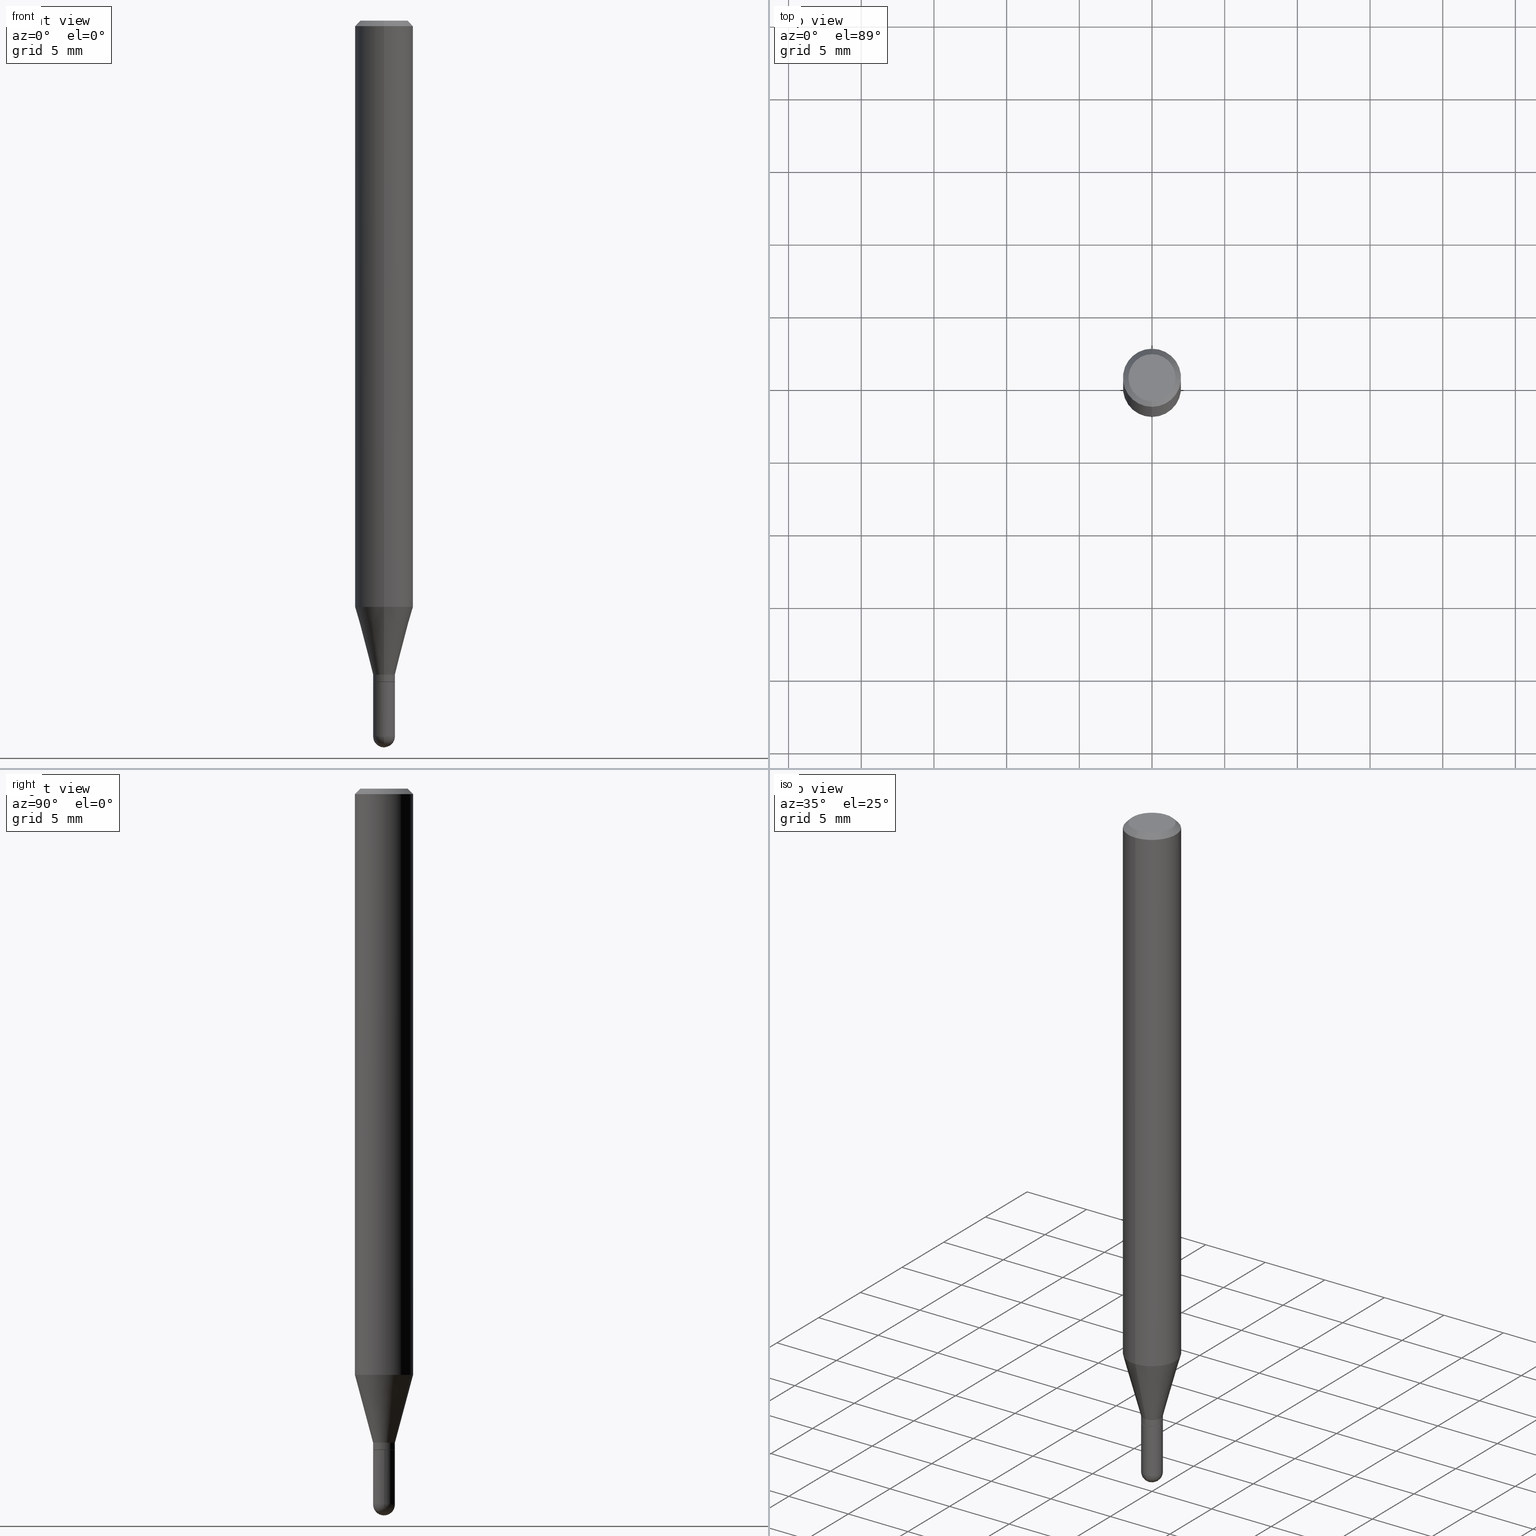
[diagram: canonical four-view strip — front | top / right | iso, engineering-drawing reading convention]
A machine part, canonical four-view strip (front | top / right | iso — engineering-drawing reading convention). The complete STEP part file that produces these views, byte-faithful:
ISO-10303-21;
HEADER;
FILE_DESCRIPTION (( 'STEP AP203' ),
    '1' );
FILE_NAME ('02080.STEP',
    '2024-03-07T20:06:09',
    ( '' ),
    ( '' ),
    'SwSTEP 2.0',
    'SolidWorks 2023',
    '' );
FILE_SCHEMA (( 'CONFIG_CONTROL_DESIGN' ));
ENDSEC;

DATA;
#1 = CARTESIAN_POINT ( 'NONE',  ( -2.099653784170616315E-16, -0.02955000000000669938, -1.938949999999999729 ) ) ;
#2 = EDGE_LOOP ( 'NONE', ( #120, #334, #389, #105 ) ) ;
#3 = FACE_OUTER_BOUND ( 'NONE', #511, .T. ) ;
#4 = ORIENTED_EDGE ( 'NONE', *, *, #478, .F. ) ;
#5 = DIMENSIONAL_EXPONENTS ( 1.000000000000000000, 0.000000000000000000, 0.000000000000000000, 0.000000000000000000, 0.000000000000000000, 0.000000000000000000, 0.000000000000000000 ) ;
#6 = DIRECTION ( 'NONE',  ( -6.982962677686265922E-15, -1.000000000000000000, 3.491489046793725372E-15 ) ) ;
#7 = VERTEX_POINT ( 'NONE', #298 ) ;
#8 = VECTOR ( 'NONE', #45, 39.37007874015748143 ) ;
#9 = CARTESIAN_POINT ( 'NONE',  ( 4.812641836783178866E-29, -6.874790431158471975E-15, -1.968500000000000139 ) ) ;
#10 = EDGE_LOOP ( 'NONE', ( #497, #225, #432, #278, #217 ) ) ;
#11 = AXIS2_PLACEMENT_3D ( 'NONE', #97, #333, #405 ) ;
#12 = AXIS2_PLACEMENT_3D ( 'NONE', #294, #78, #414 ) ;
#13 = DIRECTION ( 'NONE',  ( -2.445468806185136597E-29, 3.491481338843145583E-15, 1.000000000000000000 ) ) ;
#14 = EDGE_LOOP ( 'NONE', ( #84, #310, #416, #46 ) ) ;
#15 = LINE ( 'NONE', #183, #130 ) ;
#16 = ORIENTED_EDGE ( 'NONE', *, *, #451, .F. ) ;
#17 = FACE_OUTER_BOUND ( 'NONE', #79, .T. ) ;
#18 = SPHERICAL_SURFACE ( 'NONE', #321, 0.02954999999999984722 ) ;
#19 = CARTESIAN_POINT ( 'NONE',  ( 0.000000000000000000, 0.000000000000000000, 0.000000000000000000 ) ) ;
#20 = PRODUCT_DEFINITION_SHAPE ( 'NONE', 'NONE',  #65 ) ;
#21 = AXIS2_PLACEMENT_3D ( 'NONE', #306, #192, #351 ) ;
#22 = ORGANIZATION ( 'UNSPECIFIED', 'UNSPECIFIED', '' ) ;
#23 = CARTESIAN_POINT ( 'NONE',  ( 4.380558630966984636E-29, -6.254304329521600720E-15, -1.791300000000000336 ) ) ;
#24 = DIRECTION ( 'NONE',  ( -2.445463423752014680E-29, 3.491489046793725372E-15, 1.000000000000000000 ) ) ;
#25 = DATE_AND_TIME ( #67, #60 ) ;
#26 = ADVANCED_FACE ( 'NONE', ( #421 ), #18, .T. ) ;
#27 = APPROVAL_PERSON_ORGANIZATION ( #138, #143, #373 ) ;
#28 = EDGE_CURVE ( 'NONE', #460, #313, #506, .T. ) ;
#29 = DATE_AND_TIME ( #375, #308 ) ;
#30 = LINE ( 'NONE', #33, #398 ) ;
#31 = EDGE_CURVE ( 'NONE', #156, #304, #227, .T. ) ;
#32 = CIRCLE ( 'NONE', #426, 0.07875000000000000056 ) ;
#33 = CARTESIAN_POINT ( 'NONE',  ( 5.595524044110787031E-16, 0.07875000000000000056, -2.749547624350058893E-16 ) ) ;
#34 = DIRECTION ( 'NONE',  ( -6.982962677686265133E-15, -1.000000000000000000, 0.000000000000000000 ) ) ;
#35 = DIRECTION ( 'NONE',  ( -2.445463423752014680E-29, 3.491489046793725372E-15, 1.000000000000000000 ) ) ;
#36 = CARTESIAN_POINT ( 'NONE',  ( 4.380558630966984636E-29, -6.254304329521600720E-15, -1.791300000000000336 ) ) ;
#37 = APPLICATION_CONTEXT ( 'configuration controlled 3d designs of mechanical parts and assemblies' ) ;
#38 = VERTEX_POINT ( 'NONE', #270 ) ;
#39 = CARTESIAN_POINT ( 'NONE',  ( -5.749254559523100679E-45, 8.208447988563890447E-31, 2.350987752947930189E-16 ) ) ;
#40 = EDGE_CURVE ( 'NONE', #430, #453, #152, .T. ) ;
#41 = VECTOR ( 'NONE', #117, 39.37007874015748143 ) ;
#42 = AXIS2_PLACEMENT_3D ( 'NONE', #85, #52, #302 ) ;
#43 = APPROVAL ( #450, 'UNSPECIFIED' ) ;
#44 = ORIENTED_EDGE ( 'NONE', *, *, #307, .T. ) ;
#45 = DIRECTION ( 'NONE',  ( -4.937700262161976356E-15, -0.7071067811861768693, 0.7071067811869181652 ) ) ;
#46 = ORIENTED_EDGE ( 'NONE', *, *, #216, .F. ) ;
#47 = LINE ( 'NONE', #444, #41 ) ;
#48 = ORIENTED_EDGE ( 'NONE', *, *, #113, .T. ) ;
#49 = EDGE_CURVE ( 'NONE', #161, #395, #254, .T. ) ;
#50 = PLANE ( 'NONE',  #106 ) ;
#51 = ORIENTED_EDGE ( 'NONE', *, *, #442, .T. ) ;
#52 = DIRECTION ( 'NONE',  ( -2.445463423752014680E-29, 3.491489046793725372E-15, 1.000000000000000000 ) ) ;
#53 = VERTEX_POINT ( 'NONE', #194 ) ;
#54 = AXIS2_PLACEMENT_3D ( 'NONE', #195, #474, #126 ) ;
#55 = DIRECTION ( 'NONE',  ( -2.445468806185136597E-29, 3.491481338843145583E-15, 1.000000000000000000 ) ) ;
#56 = CARTESIAN_POINT ( 'NONE',  ( 0.000000000000000000, 0.000000000000000000, 0.000000000000000000 ) ) ;
#57 = CYLINDRICAL_SURFACE ( 'NONE', #486, 0.02954999999999992008 ) ;
#58 = VECTOR ( 'NONE', #489, 39.37007874015748143 ) ;
#59 = CC_DESIGN_DATE_AND_TIME_ASSIGNMENT ( #170, #175, ( #65 ) ) ;
#60 = LOCAL_TIME ( 15, 6, 9.000000000000000000, #410 ) ;
#61 = LINE ( 'NONE', #327, #271 ) ;
#62 = ADVANCED_BREP_SHAPE_REPRESENTATION ( '02080', ( #134, #287, #77 ), #250 ) ;
#63 = EDGE_CURVE ( 'NONE', #391, #507, #15, .T. ) ;
#64 = PERSON_AND_ORGANIZATION_ROLE ( 'creator' ) ;
#65 = PRODUCT_DEFINITION ( 'UNKNOWN', '', #289, #448 ) ;
#66 = CARTESIAN_POINT ( 'NONE',  ( 2.099653784171501564E-16, 0.02954999999999330038, -1.790800000000000169 ) ) ;
#67 = CALENDAR_DATE ( 2024, 7, 3 ) ;
#68 = VECTOR ( 'NONE', #231, 39.37007874015748143 ) ;
#69 = DIRECTION ( 'NONE',  ( 1.000000000000000000, 0.000000000000000000, 0.000000000000000000 ) ) ;
#70 = PERSON_AND_ORGANIZATION ( #185, #22 ) ;
#71 = ORIENTED_EDGE ( 'NONE', *, *, #343, .F. ) ;
#72 = DIRECTION ( 'NONE',  ( -6.982962677686266711E-15, -1.000000000000000000, 0.000000000000000000 ) ) ;
#73 = MECHANICAL_CONTEXT ( 'NONE', #213, 'mechanical' ) ;
#74 = AXIS2_PLACEMENT_3D ( 'NONE', #383, #386, #425 ) ;
#75 = DIRECTION ( 'NONE',  ( -2.445463423752014680E-29, 3.491489046793725372E-15, 1.000000000000000000 ) ) ;
#76 = AXIS2_PLACEMENT_3D ( 'NONE', #457, #379, #257 ) ;
#77 = AXIS2_PLACEMENT_3D ( 'NONE', #102, #212, #69 ) ;
#78 = DIRECTION ( 'NONE',  ( -2.445468806185136597E-29, 3.491481338843145583E-15, 1.000000000000000000 ) ) ;
#79 = EDGE_LOOP ( 'NONE', ( #318, #413 ) ) ;
#80 = DIRECTION ( 'NONE',  ( -2.445468806185136597E-29, 3.491481338843145583E-15, 1.000000000000000000 ) ) ;
#81 = CARTESIAN_POINT ( 'NONE',  ( 4.741641741752670047E-29, -6.769807741949916508E-15, -1.938949999999999729 ) ) ;
#82 = ADVANCED_FACE ( 'NONE', ( #239 ), #190, .F. ) ;
#83 = DIRECTION ( 'NONE',  ( 1.000000000000000000, -6.982962677686261977E-15, 0.000000000000000000 ) ) ;
#84 = ORIENTED_EDGE ( 'NONE', *, *, #422, .T. ) ;
#85 = CARTESIAN_POINT ( 'NONE',  ( 4.380558630966984636E-29, -6.254304329521600720E-15, -1.791300000000000336 ) ) ;
#86 = DIRECTION ( 'NONE',  ( -2.445468806185136597E-29, 3.491481338843145583E-15, 1.000000000000000000 ) ) ;
#87 = EDGE_LOOP ( 'NONE', ( #147, #276, #268, #244 ) ) ;
#88 = DIRECTION ( 'NONE',  ( 2.445463423752014680E-29, -3.491489046793725372E-15, -1.000000000000000000 ) ) ;
#89 = ORIENTED_EDGE ( 'NONE', *, *, #451, .T. ) ;
#90 = CARTESIAN_POINT ( 'NONE',  ( 4.380558630966984075E-29, -6.254304329521599931E-15, -1.791300000000000114 ) ) ;
#91 = ORIENTED_EDGE ( 'NONE', *, *, #248, .T. ) ;
#92 = AXIS2_PLACEMENT_3D ( 'NONE', #368, #246, #164 ) ;
#93 = CARTESIAN_POINT ( 'NONE',  ( -2.063465471255836346E-16, -0.02955000000000600202, -1.790800000000000169 ) ) ;
#94 = EDGE_CURVE ( 'NONE', #38, #53, #262, .T. ) ;
#95 = CONICAL_SURFACE ( 'NONE', #224, 0.07875000000000000056, 0.7853981633974483900 ) ;
#96 = CIRCLE ( 'NONE', #12, 0.02954999999999999988 ) ;
#97 = CARTESIAN_POINT ( 'NONE',  ( 4.451638707024993845E-16, 0.06375000000000000111, -1.050330390857034540E-16 ) ) ;
#98 = APPROVAL_DATE_TIME ( #369, #143 ) ;
#99 = COORDINATED_UNIVERSAL_TIME_OFFSET ( 5, 0, .BEHIND. ) ;
#100 = AXIS2_PLACEMENT_3D ( 'NONE', #347, #199, #509 ) ;
#101 = FACE_OUTER_BOUND ( 'NONE', #2, .T. ) ;
#102 = CARTESIAN_POINT ( 'NONE',  ( 0.000000000000000000, 0.000000000000000000, 0.000000000000000000 ) ) ;
#103 = ORIENTED_EDGE ( 'NONE', *, *, #494, .F. ) ;
#104 = CARTESIAN_POINT ( 'NONE',  ( 4.332138455176693221E-29, -6.185172846395084500E-15, -1.771499999999999853 ) ) ;
#105 = ORIENTED_EDGE ( 'NONE', *, *, #107, .F. ) ;
#106 = AXIS2_PLACEMENT_3D ( 'NONE', #90, #469, #200 ) ;
#107 = EDGE_CURVE ( 'NONE', #453, #304, #249, .T. ) ;
#108 = DIRECTION ( 'NONE',  ( -1.000000000000000000, 7.105427357601001070E-15, -4.926315508542082329E-29 ) ) ;
#109 = CC_DESIGN_PERSON_AND_ORGANIZATION_ASSIGNMENT ( #338, #449, ( #324 ) ) ;
#110 = ORIENTED_EDGE ( 'NONE', *, *, #350, .T. ) ;
#111 = DIRECTION ( 'NONE',  ( -1.000000000000000000, 6.982962677686265922E-15, -4.876176775795935793E-29 ) ) ;
#112 = ORIENTED_EDGE ( 'NONE', *, *, #248, .F. ) ;
#113 = EDGE_CURVE ( 'NONE', #240, #295, #283, .T. ) ;
#114 = CIRCLE ( 'NONE', #263, 0.02904999999999999943 ) ;
#115 = VERTEX_POINT ( 'NONE', #9 ) ;
#116 = CARTESIAN_POINT ( 'NONE',  ( 0.000000000000000000, 0.000000000000000000, 0.000000000000000000 ) ) ;
#117 = DIRECTION ( 'NONE',  ( -4.851104656540964275E-15, -0.7071067811865500152, -0.7071067811865450192 ) ) ;
#118 = VERTEX_POINT ( 'NONE', #162 ) ;
#119 = LINE ( 'NONE', #167, #396 ) ;
#120 = ORIENTED_EDGE ( 'NONE', *, *, #40, .F. ) ;
#121 = ORIENTED_EDGE ( 'NONE', *, *, #154, .F. ) ;
#122 = CLOSED_SHELL ( 'NONE', ( #337, #247, #82, #26, #206 ) ) ;
#123 = AXIS2_PLACEMENT_3D ( 'NONE', #382, #140, #83 ) ;
#124 = ADVANCED_FACE ( 'NONE', ( #348 ), #418, .T. ) ;
#125 = AXIS2_PLACEMENT_3D ( 'NONE', #104, #35, #139 ) ;
#126 = DIRECTION ( 'NONE',  ( -6.982962677686265133E-15, -1.000000000000000000, 0.000000000000000000 ) ) ;
#127 = PRODUCT_RELATED_PRODUCT_CATEGORY ( 'detail', '', ( #500 ) ) ;
#128 = LINE ( 'NONE', #404, #492 ) ;
#129 = PERSON_AND_ORGANIZATION ( #185, #22 ) ;
#130 = VECTOR ( 'NONE', #187, 39.37007874015748854 ) ;
#131 = COORDINATED_UNIVERSAL_TIME_OFFSET ( 5, 0, .BEHIND. ) ;
#132 = APPROVAL_PERSON_ORGANIZATION ( #129, #43, #180 ) ;
#133 = EDGE_CURVE ( 'NONE', #295, #7, #370, .T. ) ;
#134 = MANIFOLD_SOLID_BREP ( 'Body-Move/Copy2[1]', #122 ) ;
#135 = SECURITY_CLASSIFICATION_LEVEL ( 'unclassified' ) ;
#136 = APPROVAL_DATE_TIME ( #256, #503 ) ;
#137 = ORIENTED_EDGE ( 'NONE', *, *, #402, .F. ) ;
#138 = PERSON_AND_ORGANIZATION ( #185, #22 ) ;
#139 = DIRECTION ( 'NONE',  ( -6.982962677686265133E-15, -1.000000000000000000, 0.000000000000000000 ) ) ;
#140 = DIRECTION ( 'NONE',  ( -2.445468806185136597E-29, 3.491481338843145583E-15, 1.000000000000000000 ) ) ;
#141 = ORIENTED_EDGE ( 'NONE', *, *, #28, .T. ) ;
#142 = CARTESIAN_POINT ( 'NONE',  ( -5.499083108677547901E-16, -0.07875000000000556555, -1.587883100267612591 ) ) ;
#143 = APPROVAL ( #455, 'UNSPECIFIED' ) ;
#144 = CLOSED_SHELL ( 'NONE', ( #452, #124, #366, #437, #325, #458, #174, #427, #401, #301, #269, #300 ) ) ;
#145 = CIRCLE ( 'NONE', #345, 0.02954999999999984722 ) ;
#146 = CIRCLE ( 'NONE', #125, 0.02955000000000019417 ) ;
#147 = ORIENTED_EDGE ( 'NONE', *, *, #442, .F. ) ;
#148 = DIRECTION ( 'NONE',  ( 1.000000000000000000, -6.982962677686261977E-15, 0.000000000000000000 ) ) ;
#149 = VERTEX_POINT ( 'NONE', #299 ) ;
#150 = CARTESIAN_POINT ( 'NONE',  ( -2.028550657867422299E-16, -0.02905000000000625138, -1.791300000000000336 ) ) ;
#151 = ORIENTED_EDGE ( 'NONE', *, *, #216, .T. ) ;
#152 = LINE ( 'NONE', #429, #353 ) ;
#153 = ORIENTED_EDGE ( 'NONE', *, *, #468, .F. ) ;
#154 = EDGE_CURVE ( 'NONE', #53, #38, #214, .T. ) ;
#155 = DIRECTION ( 'NONE',  ( 1.000000000000000000, -6.982962677686261977E-15, 0.000000000000000000 ) ) ;
#156 = VERTEX_POINT ( 'NONE', #465 ) ;
#157 = CC_DESIGN_APPROVAL ( #43, ( #65 ) ) ;
#158 = DIRECTION ( 'NONE',  ( -2.445463423752014680E-29, 3.491489046793725372E-15, 1.000000000000000000 ) ) ;
#159 = ORIENTED_EDGE ( 'NONE', *, *, #447, .F. ) ;
#160 = CARTESIAN_POINT ( 'NONE',  ( -0.02954999999999999988, 2.099653784171096041E-16, -1.453545319170324550E-30 ) ) ;
#161 = VERTEX_POINT ( 'NONE', #267 ) ;
#162 = CARTESIAN_POINT ( 'NONE',  ( 5.595524044111173573E-16, 0.07874999999999443556, -1.587883100267613035 ) ) ;
#163 = DIRECTION ( 'NONE',  ( -1.000000000000000000, 6.982962677686265922E-15, -4.883557194083112340E-29 ) ) ;
#164 = DIRECTION ( 'NONE',  ( -6.982962677686265922E-15, -1.000000000000000000, 0.000000000000000000 ) ) ;
#165 = AXIS2_PLACEMENT_3D ( 'NONE', #36, #184, #510 ) ;
#166 = CC_DESIGN_APPROVAL ( #503, ( #289 ) ) ;
#167 = CARTESIAN_POINT ( 'NONE',  ( -5.499083108677933457E-16, -0.07875000000000000056, 2.749547624350058893E-16 ) ) ;
#168 = EDGE_CURVE ( 'NONE', #53, #395, #512, .T. ) ;
#169 = CARTESIAN_POINT ( 'NONE',  ( 2.081890215777515068E-16, 0.02904999999999374402, -1.791300000000000336 ) ) ;
#170 = DATE_AND_TIME ( #292, #215 ) ;
#171 = FACE_OUTER_BOUND ( 'NONE', #189, .T. ) ;
#172 = PERSON_AND_ORGANIZATION ( #185, #22 ) ;
#173 = APPROVAL_DATE_TIME ( #25, #43 ) ;
#174 = ADVANCED_FACE ( 'NONE', ( #3 ), #309, .T. ) ;
#175 = DATE_TIME_ROLE ( 'creation_date' ) ;
#176 = ORIENTED_EDGE ( 'NONE', *, *, #307, .F. ) ;
#177 = PERSON_AND_ORGANIZATION_ROLE ( 'creator' ) ;
#178 = CIRCLE ( 'NONE', #508, 0.02955000000000019417 ) ;
#179 = APPROVAL_PERSON_ORGANIZATION ( #172, #503, #221 ) ;
#180 = APPROVAL_ROLE ( '' ) ;
#181 = ORIENTED_EDGE ( 'NONE', *, *, #311, .T. ) ;
#182 = LINE ( 'NONE', #290, #329 ) ;
#183 = CARTESIAN_POINT ( 'NONE',  ( -2.063465471255871845E-16, -0.02955000000000637672, -1.771499999999999853 ) ) ;
#184 = DIRECTION ( 'NONE',  ( -2.445463423752014680E-29, 3.491489046793725372E-15, 1.000000000000000000 ) ) ;
#185 = PERSON ( 'UNSPECIFIED', 'UNSPECIFIED', 'UNSPECIFIED', ('UNSPECIFIED'), ('UNSPECIFIED'), ('UNSPECIFIED') ) ;
#186 = AXIS2_PLACEMENT_3D ( 'NONE', #235, #158, #433 ) ;
#187 = DIRECTION ( 'NONE',  ( -1.807323732225332900E-15, -0.2588190451025185190, 0.9659258262890689783 ) ) ;
#188 = CYLINDRICAL_SURFACE ( 'NONE', #281, 0.02954999999999999988 ) ;
#189 = EDGE_LOOP ( 'NONE', ( #44, #89, #236, #376 ) ) ;
#190 = PLANE ( 'NONE',  #491 ) ;
#191 = ORIENTED_EDGE ( 'NONE', *, *, #311, .F. ) ;
#192 = DIRECTION ( 'NONE',  ( -2.445463423752014680E-29, 3.491489046793725372E-15, 1.000000000000000000 ) ) ;
#193 = EDGE_CURVE ( 'NONE', #507, #161, #119, .T. ) ;
#194 = CARTESIAN_POINT ( 'NONE',  ( 4.975360907851465623E-16, 0.06375000000000000111, 1.251634856169306932E-17 ) ) ;
#195 = CARTESIAN_POINT ( 'NONE',  ( 4.332138455176693221E-29, -6.185172846395084500E-15, -1.771499999999999853 ) ) ;
#196 = AXIS2_PLACEMENT_3D ( 'NONE', #56, #203, #488 ) ;
#197 = ORIENTED_EDGE ( 'NONE', *, *, #285, .T. ) ;
#198 = CIRCLE ( 'NONE', #473, 0.07875000000000000056 ) ;
#199 = DIRECTION ( 'NONE',  ( -2.445463423752014680E-29, 3.491489046793725372E-15, 1.000000000000000000 ) ) ;
#200 = DIRECTION ( 'NONE',  ( -6.982962677686265922E-15, -1.000000000000000000, 3.491489046793725372E-15 ) ) ;
#201 = APPLICATION_PROTOCOL_DEFINITION ( 'international standard', 'config_control_design', 1994, #213 ) ;
#202 = CARTESIAN_POINT ( 'NONE',  ( 3.883110042898400634E-29, -5.544076452173231922E-15, -1.587883100267612813 ) ) ;
#203 = DIRECTION ( 'NONE',  ( -2.445463423752014680E-29, 3.491489046793725372E-15, 1.000000000000000000 ) ) ;
#204 = FACE_OUTER_BOUND ( 'NONE', #232, .T. ) ;
#205 = VECTOR ( 'NONE', #312, 39.37007874015748143 ) ;
#206 = ADVANCED_FACE ( 'NONE', ( #210 ), #188, .T. ) ;
#207 = LINE ( 'NONE', #360, #58 ) ;
#208 = CC_DESIGN_DATE_AND_TIME_ASSIGNMENT ( #29, #499, ( #324 ) ) ;
#209 = CALENDAR_DATE ( 2024, 7, 3 ) ;
#210 = FACE_OUTER_BOUND ( 'NONE', #400, .T. ) ;
#211 = DIRECTION ( 'NONE',  ( 6.982962677686264344E-15, 1.000000000000000000, -3.496114991891765576E-15 ) ) ;
#212 = DIRECTION ( 'NONE',  ( 0.000000000000000000, 0.000000000000000000, 1.000000000000000000 ) ) ;
#213 = APPLICATION_CONTEXT ( 'configuration controlled 3d designs of mechanical parts and assemblies' ) ;
#214 = CIRCLE ( 'NONE', #186, 0.06375000000000000111 ) ;
#215 = LOCAL_TIME ( 15, 6, 9.000000000000000000, #99 ) ;
#216 = EDGE_CURVE ( 'NONE', #304, #391, #182, .T. ) ;
#217 = ORIENTED_EDGE ( 'NONE', *, *, #133, .T. ) ;
#218 = COORDINATED_UNIVERSAL_TIME_OFFSET ( 5, 0, .BEHIND. ) ;
#219 = ORIENTED_EDGE ( 'NONE', *, *, #113, .F. ) ;
#220 = CYLINDRICAL_SURFACE ( 'NONE', #371, 0.02954999999999992008 ) ;
#221 = APPROVAL_ROLE ( '' ) ;
#222 = DIRECTION ( 'NONE',  ( -2.445463423752014680E-29, 3.491489046793725372E-15, 1.000000000000000000 ) ) ;
#223 = EDGE_LOOP ( 'NONE', ( #466, #277, #266, #315 ) ) ;
#224 = AXIS2_PLACEMENT_3D ( 'NONE', #319, #445, #211 ) ;
#225 = ORIENTED_EDGE ( 'NONE', *, *, #367, .T. ) ;
#226 = DIRECTION ( 'NONE',  ( -6.982962677686265133E-15, -1.000000000000000000, 0.000000000000000000 ) ) ;
#227 = LINE ( 'NONE', #150, #8 ) ;
#228 = ORIENTED_EDGE ( 'NONE', *, *, #259, .F. ) ;
#229 = CONICAL_SURFACE ( 'NONE', #54, 0.02955000000000019417, 0.2617993877991506291 ) ;
#230 = ORIENTED_EDGE ( 'NONE', *, *, #494, .T. ) ;
#231 = DIRECTION ( 'NONE',  ( 4.937700262164548042E-15, 0.7071067811865451302, -0.7071067811865499042 ) ) ;
#232 = EDGE_LOOP ( 'NONE', ( #253, #159 ) ) ;
#233 = CC_DESIGN_PERSON_AND_ORGANIZATION_ASSIGNMENT ( #328, #331, ( #500 ) ) ;
#234 = CARTESIAN_POINT ( 'NONE',  ( 0.000000000000000000, 0.000000000000000000, 0.000000000000000000 ) ) ;
#235 = CARTESIAN_POINT ( 'NONE',  ( -5.749254559523100679E-45, 8.208447988563890447E-31, 2.350987752947930189E-16 ) ) ;
#236 = ORIENTED_EDGE ( 'NONE', *, *, #49, .F. ) ;
#237 = DIRECTION ( 'NONE',  ( 6.982962677686264344E-15, 1.000000000000000000, -3.496114991891765576E-15 ) ) ;
#238 = ORIENTED_EDGE ( 'NONE', *, *, #408, .T. ) ;
#239 = FACE_OUTER_BOUND ( 'NONE', #258, .T. ) ;
#240 = VERTEX_POINT ( 'NONE', #1 ) ;
#241 = DIRECTION ( 'NONE',  ( -2.445463423752014680E-29, 3.491489046793725372E-15, 1.000000000000000000 ) ) ;
#242 = EDGE_CURVE ( 'NONE', #313, #460, #387, .T. ) ;
#243 = AXIS2_PLACEMENT_3D ( 'NONE', #456, #108, #265 ) ;
#244 = ORIENTED_EDGE ( 'NONE', *, *, #285, .F. ) ;
#245 = DIRECTION ( 'NONE',  ( -6.982962677686264344E-15, -1.000000000000000000, 3.469013325287953293E-15 ) ) ;
#246 = DIRECTION ( 'NONE',  ( -2.445463423752014680E-29, 3.491489046793725372E-15, 1.000000000000000000 ) ) ;
#247 = ADVANCED_FACE ( 'NONE', ( #461 ), #297, .T. ) ;
#248 = EDGE_CURVE ( 'NONE', #115, #7, #145, .T. ) ;
#249 = CIRCLE ( 'NONE', #100, 0.02954999999999964946 ) ;
#250 =( GEOMETRIC_REPRESENTATION_CONTEXT ( 3 ) GLOBAL_UNCERTAINTY_ASSIGNED_CONTEXT ( ( #252 ) ) GLOBAL_UNIT_ASSIGNED_CONTEXT ( ( #495, #335, #377 ) ) REPRESENTATION_CONTEXT ( 'NONE', 'WORKASPACE' ) );
#251 = APPROVAL_STATUS ( 'not_yet_approved' ) ;
#252 = UNCERTAINTY_MEASURE_WITH_UNIT (LENGTH_MEASURE( 1.000000000000000082E-05 ), #495, 'distance_accuracy_value', 'NONE');
#253 = ORIENTED_EDGE ( 'NONE', *, *, #350, .F. ) ;
#254 = CIRCLE ( 'NONE', #74, 0.07875000000000000056 ) ;
#255 = CIRCLE ( 'NONE', #323, 0.02954999999999999988 ) ;
#256 = DATE_AND_TIME ( #209, #336 ) ;
#257 = DIRECTION ( 'NONE',  ( 6.982962677686265922E-15, 1.000000000000000000, 0.000000000000000000 ) ) ;
#258 = EDGE_LOOP ( 'NONE', ( #411, #141 ) ) ;
#259 = EDGE_CURVE ( 'NONE', #115, #240, #438, .T. ) ;
#260 = DIRECTION ( 'NONE',  ( -2.445463423752014680E-29, 3.491489046793725372E-15, 1.000000000000000000 ) ) ;
#261 = FACE_OUTER_BOUND ( 'NONE', #87, .T. ) ;
#262 = CIRCLE ( 'NONE', #424, 0.06375000000000000111 ) ;
#263 = AXIS2_PLACEMENT_3D ( 'NONE', #23, #502, #72 ) ;
#264 = DIRECTION ( 'NONE',  ( 6.982962677686265922E-15, 1.000000000000000000, 0.000000000000000000 ) ) ;
#265 = DIRECTION ( 'NONE',  ( -7.105427357601001070E-15, -1.000000000000000000, 0.000000000000000000 ) ) ;
#266 = ORIENTED_EDGE ( 'NONE', *, *, #49, .T. ) ;
#267 = CARTESIAN_POINT ( 'NONE',  ( -5.499083108677930499E-16, -0.07875000000000004219, -0.01499999999999948944 ) ) ;
#268 = ORIENTED_EDGE ( 'NONE', *, *, #63, .T. ) ;
#269 = ADVANCED_FACE ( 'NONE', ( #101 ), #406, .T. ) ;
#270 = CARTESIAN_POINT ( 'NONE',  ( -4.888104823412213911E-16, -0.06375000000000000111, 4.576812020278930316E-16 ) ) ;
#271 = VECTOR ( 'NONE', #24, 39.37007874015748143 ) ;
#272 = CONICAL_SURFACE ( 'NONE', #440, 0.02955000000000019417, 0.2617993877991506291 ) ;
#273 = EDGE_LOOP ( 'NONE', ( #228, #91, #388, #219 ) ) ;
#274 = DIRECTION ( 'NONE',  ( -6.982962677686264344E-15, -1.000000000000000000, 3.491489046793725372E-15 ) ) ;
#275 = FACE_OUTER_BOUND ( 'NONE', #223, .T. ) ;
#276 = ORIENTED_EDGE ( 'NONE', *, *, #468, .T. ) ;
#277 = ORIENTED_EDGE ( 'NONE', *, *, #343, .T. ) ;
#278 = ORIENTED_EDGE ( 'NONE', *, *, #408, .F. ) ;
#279 = CARTESIAN_POINT ( 'NONE',  ( 4.741641741752670047E-29, -6.769807741949916508E-15, -1.938949999999999729 ) ) ;
#280 = ORIENTED_EDGE ( 'NONE', *, *, #259, .T. ) ;
#281 = AXIS2_PLACEMENT_3D ( 'NONE', #420, #80, #293 ) ;
#282 = CYLINDRICAL_SURFACE ( 'NONE', #288, 0.02954999999999999988 ) ;
#283 = CIRCLE ( 'NONE', #380, 0.02954999999999999988 ) ;
#284 = DIRECTION ( 'NONE',  ( -2.445463423752014680E-29, 3.491489046793725372E-15, 1.000000000000000000 ) ) ;
#285 = EDGE_CURVE ( 'NONE', #118, #507, #472, .T. ) ;
#286 = CARTESIAN_POINT ( 'NONE',  ( 3.668195135627964654E-31, -5.237233570190505697E-17, -0.01499999999999976526 ) ) ;
#287 = MANIFOLD_SOLID_BREP ( 'Body-Move/Copy2[2]', #144 ) ;
#288 = AXIS2_PLACEMENT_3D ( 'NONE', #234, #13, #363 ) ;
#289 = PRODUCT_DEFINITION_FORMATION_WITH_SPECIFIED_SOURCE ( 'ANY', '', #500, .NOT_KNOWN. ) ;
#290 = CARTESIAN_POINT ( 'NONE',  ( -2.063465471256285997E-16, -0.02954999999999992008, 1.031735013327543009E-16 ) ) ;
#291 = EDGE_CURVE ( 'NONE', #391, #428, #178, .T. ) ;
#292 = CALENDAR_DATE ( 2024, 7, 3 ) ;
#293 = DIRECTION ( 'NONE',  ( 1.000000000000000000, -6.982962677686266711E-15, 4.876176775795935793E-29 ) ) ;
#294 = CARTESIAN_POINT ( 'NONE',  ( 4.741641741752670047E-29, -6.769807741949916508E-15, -1.938949999999999729 ) ) ;
#295 = VERTEX_POINT ( 'NONE', #439 ) ;
#296 = CIRCLE ( 'NONE', #21, 0.02904999999999999943 ) ;
#297 = SPHERICAL_SURFACE ( 'NONE', #76, 0.02954999999999984722 ) ;
#298 = CARTESIAN_POINT ( 'NONE',  ( 2.063465471256760300E-16, 0.02954999999999315119, -1.938949999999999729 ) ) ;
#299 = CARTESIAN_POINT ( 'NONE',  ( -0.02954999999999999988, -6.302083753692712485E-15, -1.938949999999999729 ) ) ;
#300 = ADVANCED_FACE ( 'NONE', ( #435 ), #57, .T. ) ;
#301 = ADVANCED_FACE ( 'NONE', ( #204 ), #50, .F. ) ;
#302 = DIRECTION ( 'NONE',  ( -6.982962677686266711E-15, -1.000000000000000000, 0.000000000000000000 ) ) ;
#303 = DIRECTION ( 'NONE',  ( -6.982962677686264344E-15, -1.000000000000000000, 3.491489046793725767E-15 ) ) ;
#304 = VERTEX_POINT ( 'NONE', #93 ) ;
#305 = CIRCLE ( 'NONE', #92, 0.02954999999999964946 ) ;
#306 = CARTESIAN_POINT ( 'NONE',  ( 4.380558630966984636E-29, -6.254304329521600720E-15, -1.791300000000000336 ) ) ;
#307 = EDGE_CURVE ( 'NONE', #507, #118, #32, .T. ) ;
#308 = LOCAL_TIME ( 15, 6, 9.000000000000000000, #218 ) ;
#309 = CYLINDRICAL_SURFACE ( 'NONE', #322, 0.07875000000000000056 ) ;
#310 = ORIENTED_EDGE ( 'NONE', *, *, #402, .T. ) ;
#311 = EDGE_CURVE ( 'NONE', #149, #240, #255, .T. ) ;
#312 = DIRECTION ( 'NONE',  ( -2.445468806185136877E-29, 3.491481338843145188E-15, 1.000000000000000000 ) ) ;
#313 = VERTEX_POINT ( 'NONE', #361 ) ;
#314 = CARTESIAN_POINT ( 'NONE',  ( 2.063465471256729731E-16, 0.02954999999999374793, -1.791300000000000114 ) ) ;
#315 = ORIENTED_EDGE ( 'NONE', *, *, #168, .F. ) ;
#316 = CARTESIAN_POINT ( 'NONE',  ( -2.063465471255871845E-16, -0.02955000000000637672, -1.771499999999999853 ) ) ;
#317 = CARTESIAN_POINT ( 'NONE',  ( 4.380568272519435501E-29, -6.254290522269726388E-15, -1.791300000000000114 ) ) ;
#318 = ORIENTED_EDGE ( 'NONE', *, *, #154, .T. ) ;
#319 = CARTESIAN_POINT ( 'NONE',  ( 3.668195135627964654E-31, -5.237233570190505697E-17, -0.01499999999999976526 ) ) ;
#320 = CARTESIAN_POINT ( 'NONE',  ( 4.741641741752670047E-29, -6.769807741949916508E-15, -1.938949999999999729 ) ) ;
#321 = AXIS2_PLACEMENT_3D ( 'NONE', #358, #163, #482 ) ;
#322 = AXIS2_PLACEMENT_3D ( 'NONE', #116, #390, #274 ) ;
#323 = AXIS2_PLACEMENT_3D ( 'NONE', #320, #55, #155 ) ;
#324 = SECURITY_CLASSIFICATION ( '', '', #135 ) ;
#325 = ADVANCED_FACE ( 'NONE', ( #487 ), #229, .T. ) ;
#326 = SHAPE_DEFINITION_REPRESENTATION ( #20, #62 ) ;
#327 = CARTESIAN_POINT ( 'NONE',  ( 2.099653784171090124E-16, 0.02954999999999992008, -1.031735013327543009E-16 ) ) ;
#328 = PERSON_AND_ORGANIZATION ( #185, #22 ) ;
#329 = VECTOR ( 'NONE', #222, 39.37007874015748143 ) ;
#330 = PERSON_AND_ORGANIZATION ( #185, #22 ) ;
#331 = PERSON_AND_ORGANIZATION_ROLE ( 'design_owner' ) ;
#332 = LENGTH_MEASURE_WITH_UNIT ( LENGTH_MEASURE( 0.02539999999999999897 ), #372 );
#333 = DIRECTION ( 'NONE',  ( 2.445463423752014400E-29, -3.491489046793725372E-15, -1.000000000000000000 ) ) ;
#334 = ORIENTED_EDGE ( 'NONE', *, *, #447, .T. ) ;
#335 =( NAMED_UNIT ( * ) PLANE_ANGLE_UNIT ( ) SI_UNIT ( $, .RADIAN. ) );
#336 = LOCAL_TIME ( 15, 6, 9.000000000000000000, #378 ) ;
#337 = ADVANCED_FACE ( 'NONE', ( #355 ), #282, .T. ) ;
#338 = PERSON_AND_ORGANIZATION ( #185, #22 ) ;
#339 = CARTESIAN_POINT ( 'NONE',  ( 3.883110042898400634E-29, -5.544076452173231922E-15, -1.587883100267612813 ) ) ;
#340 = EDGE_LOOP ( 'NONE', ( #110, #483, #477, #470 ) ) ;
#341 = DIRECTION ( 'NONE',  ( -2.445463423752014680E-29, 3.491489046793725372E-15, 1.000000000000000000 ) ) ;
#342 = FACE_OUTER_BOUND ( 'NONE', #14, .T. ) ;
#343 = EDGE_CURVE ( 'NONE', #38, #161, #47, .T. ) ;
#344 = DIRECTION ( 'NONE',  ( 5.024295867785445738E-15, 0.7071067811861817543, 0.7071067811869132802 ) ) ;
#345 = AXIS2_PLACEMENT_3D ( 'NONE', #464, #384, #264 ) ;
#346 = DIRECTION ( 'NONE',  ( -6.982962677686264344E-15, -1.000000000000000000, 3.469013325287953293E-15 ) ) ;
#347 = CARTESIAN_POINT ( 'NONE',  ( 4.379335899255108517E-29, -6.252558584998202420E-15, -1.790800000000000169 ) ) ;
#348 = FACE_OUTER_BOUND ( 'NONE', #340, .T. ) ;
#349 = ORIENTED_EDGE ( 'NONE', *, *, #28, .F. ) ;
#350 = EDGE_CURVE ( 'NONE', #156, #430, #296, .T. ) ;
#351 = DIRECTION ( 'NONE',  ( -6.982962677686266711E-15, -1.000000000000000000, 0.000000000000000000 ) ) ;
#352 = DIRECTION ( 'NONE',  ( -2.445468806185136597E-29, 3.491481338843145583E-15, 1.000000000000000000 ) ) ;
#353 = VECTOR ( 'NONE', #344, 39.37007874015748143 ) ;
#354 = AXIS2_PLACEMENT_3D ( 'NONE', #339, #260, #346 ) ;
#355 = FACE_OUTER_BOUND ( 'NONE', #10, .T. ) ;
#356 = EDGE_LOOP ( 'NONE', ( #359, #51, #176, #415 ) ) ;
#357 = CARTESIAN_POINT ( 'NONE',  ( 5.595524044111179489E-16, 0.07874999999999994504, -0.01500000000000004108 ) ) ;
#358 = CARTESIAN_POINT ( 'NONE',  ( 4.739114725368145792E-29, -6.773426573241397832E-15, -1.938950000000000173 ) ) ;
#359 = ORIENTED_EDGE ( 'NONE', *, *, #291, .T. ) ;
#360 = CARTESIAN_POINT ( 'NONE',  ( 0.02954999999999999988, -2.063465471256291914E-16, 1.440910237247699070E-30 ) ) ;
#361 = CARTESIAN_POINT ( 'NONE',  ( 0.02954999999999999988, -6.460637069395355998E-15, -1.791300000000000114 ) ) ;
#362 = CC_DESIGN_PERSON_AND_ORGANIZATION_ASSIGNMENT ( #330, #493, ( #289 ) ) ;
#363 = DIRECTION ( 'NONE',  ( 1.000000000000000000, -6.982962677686266711E-15, 4.876176775795935793E-29 ) ) ;
#364 = LOCAL_TIME ( 15, 6, 9.000000000000000000, #131 ) ;
#365 = DIRECTION ( 'NONE',  ( 1.839019923739602682E-15, 0.2588190451025252914, 0.9659258262890670910 ) ) ;
#366 = ADVANCED_FACE ( 'NONE', ( #275 ), #501, .T. ) ;
#367 = EDGE_CURVE ( 'NONE', #149, #460, #392, .T. ) ;
#368 = CARTESIAN_POINT ( 'NONE',  ( 4.379335899255108517E-29, -6.252558584998202420E-15, -1.790800000000000169 ) ) ;
#369 = DATE_AND_TIME ( #409, #364 ) ;
#370 = CIRCLE ( 'NONE', #462, 0.02954999999999999988 ) ;
#371 = AXIS2_PLACEMENT_3D ( 'NONE', #412, #419, #374 ) ;
#372 =( LENGTH_UNIT ( ) NAMED_UNIT ( * ) SI_UNIT ( $, .METRE. ) );
#373 = APPROVAL_ROLE ( '' ) ;
#374 = DIRECTION ( 'NONE',  ( -6.982962677686265922E-15, -1.000000000000000000, 3.491489046793725372E-15 ) ) ;
#375 = CALENDAR_DATE ( 2024, 7, 3 ) ;
#376 = ORIENTED_EDGE ( 'NONE', *, *, #193, .F. ) ;
#377 =( NAMED_UNIT ( * ) SI_UNIT ( $, .STERADIAN. ) SOLID_ANGLE_UNIT ( ) );
#378 = COORDINATED_UNIVERSAL_TIME_OFFSET ( 5, 0, .BEHIND. ) ;
#379 = DIRECTION ( 'NONE',  ( -1.000000000000000000, 6.982962677686265922E-15, -4.883557194083112340E-29 ) ) ;
#380 = AXIS2_PLACEMENT_3D ( 'NONE', #279, #352, #148 ) ;
#381 = DIRECTION ( 'NONE',  ( -2.445463423752014680E-29, 3.491489046793725372E-15, 1.000000000000000000 ) ) ;
#382 = CARTESIAN_POINT ( 'NONE',  ( 4.380568272519435501E-29, -6.254290522269726388E-15, -1.791300000000000114 ) ) ;
#383 = CARTESIAN_POINT ( 'NONE',  ( 3.668195135627964654E-31, -5.237233570190505697E-17, -0.01499999999999976526 ) ) ;
#384 = DIRECTION ( 'NONE',  ( 1.000000000000000000, -6.982962677686265922E-15, 4.883557194083112340E-29 ) ) ;
#385 = EDGE_LOOP ( 'NONE', ( #137, #436, #151, #153 ) ) ;
#386 = DIRECTION ( 'NONE',  ( -2.445463423752014680E-29, 3.491489046793725372E-15, 1.000000000000000000 ) ) ;
#387 = CIRCLE ( 'NONE', #123, 0.02954999999999999988 ) ;
#388 = ORIENTED_EDGE ( 'NONE', *, *, #133, .F. ) ;
#389 = ORIENTED_EDGE ( 'NONE', *, *, #31, .T. ) ;
#390 = DIRECTION ( 'NONE',  ( -2.445463423752014680E-29, 3.491489046793725372E-15, 1.000000000000000000 ) ) ;
#391 = VERTEX_POINT ( 'NONE', #316 ) ;
#392 = LINE ( 'NONE', #160, #205 ) ;
#393 = EDGE_LOOP ( 'NONE', ( #71, #121, #423, #230 ) ) ;
#394 = DIRECTION ( 'NONE',  ( 2.438088387897960049E-29, -3.491481338843145188E-15, -1.000000000000000000 ) ) ;
#395 = VERTEX_POINT ( 'NONE', #357 ) ;
#396 = VECTOR ( 'NONE', #284, 39.37007874015748143 ) ;
#397 = DIRECTION ( 'NONE',  ( -2.445463423752014680E-29, 3.491489046793725372E-15, 1.000000000000000000 ) ) ;
#398 = VECTOR ( 'NONE', #341, 39.37007874015748143 ) ;
#399 = EDGE_LOOP ( 'NONE', ( #112, #280, #191, #4 ) ) ;
#400 = EDGE_LOOP ( 'NONE', ( #475, #181, #48, #238, #349 ) ) ;
#401 = ADVANCED_FACE ( 'NONE', ( #17 ), #481, .F. ) ;
#402 = EDGE_CURVE ( 'NONE', #453, #428, #61, .T. ) ;
#403 = CYLINDRICAL_SURFACE ( 'NONE', #196, 0.07875000000000000056 ) ;
#404 = CARTESIAN_POINT ( 'NONE',  ( 2.099653784171542487E-16, 0.02954999999999400814, -1.771499999999999853 ) ) ;
#405 = DIRECTION ( 'NONE',  ( 6.982962677686265922E-15, 1.000000000000000000, -3.491489046793725372E-15 ) ) ;
#406 = CONICAL_SURFACE ( 'NONE', #165, 0.02904999999999999943, 0.7853981633969275844 ) ;
#407 = CC_DESIGN_APPROVAL ( #143, ( #324 ) ) ;
#408 = EDGE_CURVE ( 'NONE', #295, #313, #207, .T. ) ;
#409 = CALENDAR_DATE ( 2024, 7, 3 ) ;
#410 = COORDINATED_UNIVERSAL_TIME_OFFSET ( 5, 0, .BEHIND. ) ;
#411 = ORIENTED_EDGE ( 'NONE', *, *, #242, .T. ) ;
#412 = CARTESIAN_POINT ( 'NONE',  ( 0.000000000000000000, 0.000000000000000000, 0.000000000000000000 ) ) ;
#413 = ORIENTED_EDGE ( 'NONE', *, *, #94, .T. ) ;
#414 = DIRECTION ( 'NONE',  ( 1.000000000000000000, -6.982962677686261977E-15, 0.000000000000000000 ) ) ;
#415 = ORIENTED_EDGE ( 'NONE', *, *, #63, .F. ) ;
#416 = ORIENTED_EDGE ( 'NONE', *, *, #291, .F. ) ;
#417 = CARTESIAN_POINT ( 'NONE',  ( 4.332138455176693221E-29, -6.185172846395084500E-15, -1.771499999999999853 ) ) ;
#418 = CONICAL_SURFACE ( 'NONE', #42, 0.02904999999999999943, 0.7853981633969275844 ) ;
#419 = DIRECTION ( 'NONE',  ( -2.445463423752014680E-29, 3.491489046793725372E-15, 1.000000000000000000 ) ) ;
#420 = CARTESIAN_POINT ( 'NONE',  ( 0.000000000000000000, 0.000000000000000000, 0.000000000000000000 ) ) ;
#421 = FACE_OUTER_BOUND ( 'NONE', #273, .T. ) ;
#422 = EDGE_CURVE ( 'NONE', #304, #453, #305, .T. ) ;
#423 = ORIENTED_EDGE ( 'NONE', *, *, #168, .T. ) ;
#424 = AXIS2_PLACEMENT_3D ( 'NONE', #39, #479, #303 ) ;
#425 = DIRECTION ( 'NONE',  ( -6.982962677686264344E-15, -1.000000000000000000, 3.496114991891765576E-15 ) ) ;
#426 = AXIS2_PLACEMENT_3D ( 'NONE', #202, #241, #245 ) ;
#427 = ADVANCED_FACE ( 'NONE', ( #484 ), #95, .T. ) ;
#428 = VERTEX_POINT ( 'NONE', #443 ) ;
#429 = CARTESIAN_POINT ( 'NONE',  ( 2.064126647383528571E-16, 0.02904999999999374402, -1.791300000000000336 ) ) ;
#430 = VERTEX_POINT ( 'NONE', #169 ) ;
#431 = CARTESIAN_POINT ( 'NONE',  ( 3.668195135627964654E-31, -5.237233570190505697E-17, -0.01499999999999976526 ) ) ;
#432 = ORIENTED_EDGE ( 'NONE', *, *, #242, .F. ) ;
#433 = DIRECTION ( 'NONE',  ( -6.982962677686264344E-15, -1.000000000000000000, 3.491489046793725767E-15 ) ) ;
#434 = ORIENTED_EDGE ( 'NONE', *, *, #193, .T. ) ;
#435 = FACE_OUTER_BOUND ( 'NONE', #385, .T. ) ;
#436 = ORIENTED_EDGE ( 'NONE', *, *, #107, .T. ) ;
#437 = ADVANCED_FACE ( 'NONE', ( #171 ), #403, .T. ) ;
#438 = CIRCLE ( 'NONE', #243, 0.02954999999999984722 ) ;
#439 = CARTESIAN_POINT ( 'NONE',  ( 0.02954999999999999988, -6.718395679235450664E-15, -1.938949999999999729 ) ) ;
#440 = AXIS2_PLACEMENT_3D ( 'NONE', #459, #504, #226 ) ;
#441 = CC_DESIGN_PERSON_AND_ORGANIZATION_ASSIGNMENT ( #70, #64, ( #289 ) ) ;
#442 = EDGE_CURVE ( 'NONE', #428, #118, #128, .T. ) ;
#443 = CARTESIAN_POINT ( 'NONE',  ( 3.847588914141360372E-16, 0.02954999999999400814, -1.771499999999999853 ) ) ;
#444 = CARTESIAN_POINT ( 'NONE',  ( -5.402642173245076924E-16, -0.07875000000000004219, -0.01499999999999948944 ) ) ;
#445 = DIRECTION ( 'NONE',  ( 2.445463423752014680E-29, -3.491489046793725372E-15, -1.000000000000000000 ) ) ;
#446 = AXIS2_PLACEMENT_3D ( 'NONE', #431, #88, #237 ) ;
#447 = EDGE_CURVE ( 'NONE', #430, #156, #114, .T. ) ;
#448 = DESIGN_CONTEXT ( 'detailed design', #37, 'design' ) ;
#449 = PERSON_AND_ORGANIZATION_ROLE ( 'classification_officer' ) ;
#450 = APPROVAL_STATUS ( 'not_yet_approved' ) ;
#451 = EDGE_CURVE ( 'NONE', #118, #395, #30, .T. ) ;
#452 = ADVANCED_FACE ( 'NONE', ( #342 ), #220, .T. ) ;
#453 = VERTEX_POINT ( 'NONE', #66 ) ;
#454 = CARTESIAN_POINT ( 'NONE',  ( -0.02954999999999999988, -6.302083753692712485E-15, -1.791300000000000114 ) ) ;
#455 = APPROVAL_STATUS ( 'not_yet_approved' ) ;
#456 = CARTESIAN_POINT ( 'NONE',  ( 4.739114725368145792E-29, -6.773426573241397832E-15, -1.938950000000000173 ) ) ;
#457 = CARTESIAN_POINT ( 'NONE',  ( 4.739114725368145792E-29, -6.773426573241397832E-15, -1.938950000000000173 ) ) ;
#458 = ADVANCED_FACE ( 'NONE', ( #261 ), #272, .T. ) ;
#459 = CARTESIAN_POINT ( 'NONE',  ( 4.332138455176693221E-29, -6.185172846395084500E-15, -1.771499999999999853 ) ) ;
#460 = VERTEX_POINT ( 'NONE', #454 ) ;
#461 = FACE_OUTER_BOUND ( 'NONE', #399, .T. ) ;
#462 = AXIS2_PLACEMENT_3D ( 'NONE', #81, #86, #476 ) ;
#463 = CC_DESIGN_SECURITY_CLASSIFICATION ( #324, ( #289 ) ) ;
#464 = CARTESIAN_POINT ( 'NONE',  ( 4.739114725368145792E-29, -6.773426573241397832E-15, -1.938950000000000173 ) ) ;
#465 = CARTESIAN_POINT ( 'NONE',  ( -2.028550657867422299E-16, -0.02905000000000625138, -1.791300000000000336 ) ) ;
#466 = ORIENTED_EDGE ( 'NONE', *, *, #94, .F. ) ;
#467 = CARTESIAN_POINT ( 'NONE',  ( 5.499083108677937401E-16, 0.07874999999999994504, -0.01500000000000004108 ) ) ;
#468 = EDGE_CURVE ( 'NONE', #428, #391, #146, .T. ) ;
#469 = DIRECTION ( 'NONE',  ( -2.445463423752014400E-29, 3.491489046793725372E-15, 1.000000000000000000 ) ) ;
#470 = ORIENTED_EDGE ( 'NONE', *, *, #31, .F. ) ;
#471 = DIRECTION ( 'NONE',  ( 1.000000000000000000, -6.982962677686261977E-15, 0.000000000000000000 ) ) ;
#472 = CIRCLE ( 'NONE', #354, 0.07875000000000000056 ) ;
#473 = AXIS2_PLACEMENT_3D ( 'NONE', #286, #381, #505 ) ;
#474 = DIRECTION ( 'NONE',  ( -2.445463423752014680E-29, 3.491489046793725372E-15, 1.000000000000000000 ) ) ;
#475 = ORIENTED_EDGE ( 'NONE', *, *, #367, .F. ) ;
#476 = DIRECTION ( 'NONE',  ( 1.000000000000000000, -6.982962677686261977E-15, 0.000000000000000000 ) ) ;
#477 = ORIENTED_EDGE ( 'NONE', *, *, #422, .F. ) ;
#478 = EDGE_CURVE ( 'NONE', #7, #149, #96, .T. ) ;
#479 = DIRECTION ( 'NONE',  ( -2.445463423752014680E-29, 3.491489046793725372E-15, 1.000000000000000000 ) ) ;
#480 = CC_DESIGN_PERSON_AND_ORGANIZATION_ASSIGNMENT ( #496, #177, ( #65 ) ) ;
#481 = PLANE ( 'NONE',  #11 ) ;
#482 = DIRECTION ( 'NONE',  ( 6.982962677686265922E-15, 1.000000000000000000, 0.000000000000000000 ) ) ;
#483 = ORIENTED_EDGE ( 'NONE', *, *, #40, .T. ) ;
#484 = FACE_OUTER_BOUND ( 'NONE', #393, .T. ) ;
#485 = AXIS2_PLACEMENT_3D ( 'NONE', #317, #498, #471 ) ;
#486 = AXIS2_PLACEMENT_3D ( 'NONE', #19, #397, #6 ) ;
#487 = FACE_OUTER_BOUND ( 'NONE', #356, .T. ) ;
#488 = DIRECTION ( 'NONE',  ( -6.982962677686264344E-15, -1.000000000000000000, 3.491489046793725372E-15 ) ) ;
#489 = DIRECTION ( 'NONE',  ( -2.445468806185136877E-29, 3.491481338843145188E-15, 1.000000000000000000 ) ) ;
#490 = APPLICATION_PROTOCOL_DEFINITION ( 'international standard', 'config_control_design', 1994, #37 ) ;
#491 = AXIS2_PLACEMENT_3D ( 'NONE', #314, #394, #111 ) ;
#492 = VECTOR ( 'NONE', #365, 39.37007874015748143 ) ;
#493 = PERSON_AND_ORGANIZATION_ROLE ( 'design_supplier' ) ;
#494 = EDGE_CURVE ( 'NONE', #395, #161, #198, .T. ) ;
#495 =( CONVERSION_BASED_UNIT ( 'INCH', #332 ) LENGTH_UNIT ( ) NAMED_UNIT ( #5 ) );
#496 = PERSON_AND_ORGANIZATION ( #185, #22 ) ;
#497 = ORIENTED_EDGE ( 'NONE', *, *, #478, .T. ) ;
#498 = DIRECTION ( 'NONE',  ( -2.445468806185136597E-29, 3.491481338843145583E-15, 1.000000000000000000 ) ) ;
#499 = DATE_TIME_ROLE ( 'classification_date' ) ;
#500 = PRODUCT ( '02080', '02080', '', ( #73 ) ) ;
#501 = CONICAL_SURFACE ( 'NONE', #446, 0.07875000000000000056, 0.7853981633974483900 ) ;
#502 = DIRECTION ( 'NONE',  ( -2.445463423752014680E-29, 3.491489046793725372E-15, 1.000000000000000000 ) ) ;
#503 = APPROVAL ( #251, 'UNSPECIFIED' ) ;
#504 = DIRECTION ( 'NONE',  ( -2.445463423752014680E-29, 3.491489046793725372E-15, 1.000000000000000000 ) ) ;
#505 = DIRECTION ( 'NONE',  ( -6.982962677686264344E-15, -1.000000000000000000, 3.496114991891765576E-15 ) ) ;
#506 = CIRCLE ( 'NONE', #485, 0.02954999999999999988 ) ;
#507 = VERTEX_POINT ( 'NONE', #142 ) ;
#508 = AXIS2_PLACEMENT_3D ( 'NONE', #417, #75, #34 ) ;
#509 = DIRECTION ( 'NONE',  ( -6.982962677686265922E-15, -1.000000000000000000, 0.000000000000000000 ) ) ;
#510 = DIRECTION ( 'NONE',  ( -6.982962677686266711E-15, -1.000000000000000000, 0.000000000000000000 ) ) ;
#511 = EDGE_LOOP ( 'NONE', ( #16, #197, #434, #103 ) ) ;
#512 = LINE ( 'NONE', #467, #68 ) ;
ENDSEC;
END-ISO-10303-21;
